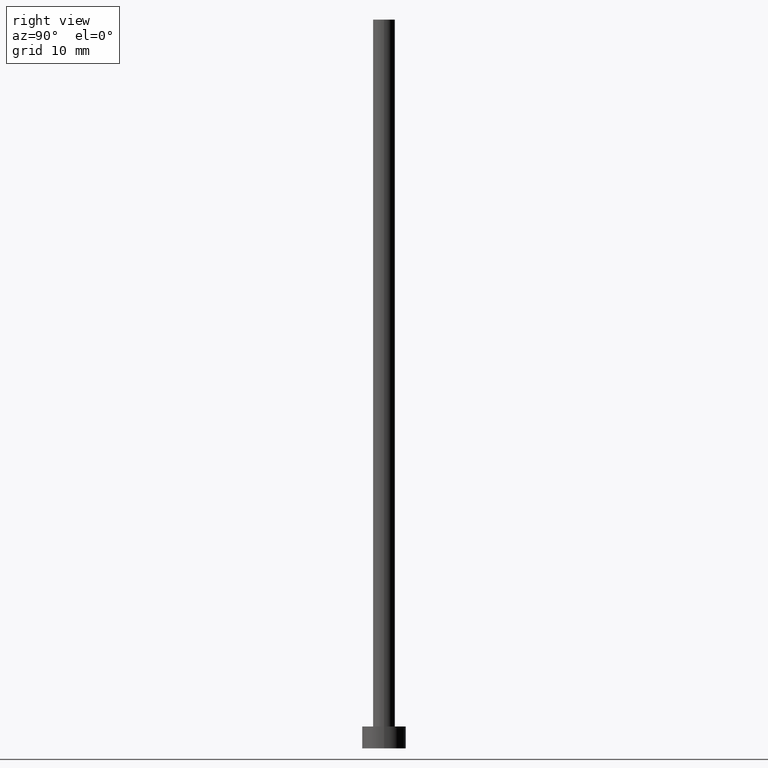
[diagram: clean part render]
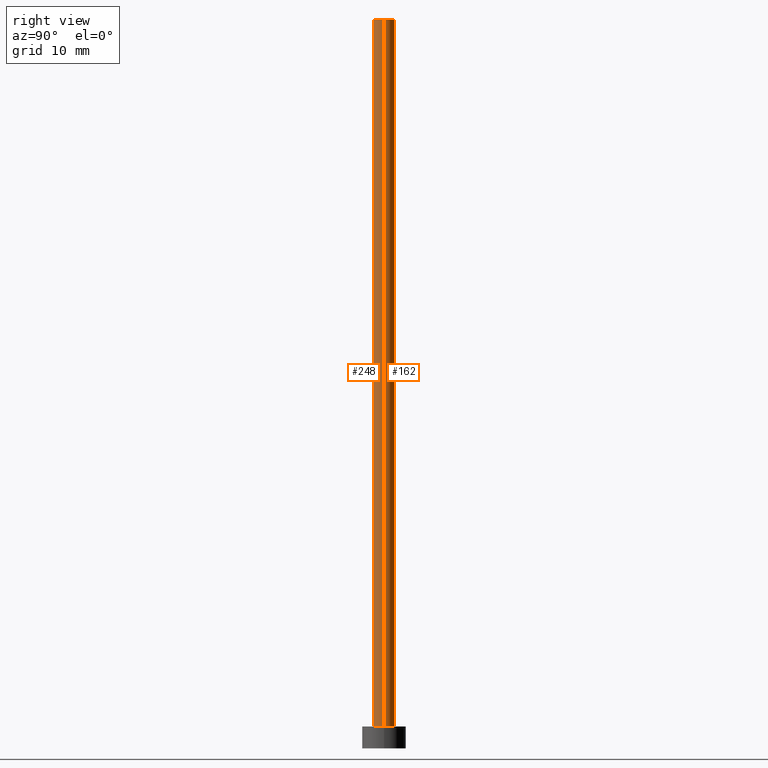
[diagram: same view with one multi-face feature highlighted, each face labeled with its STEP entity id]
A machine part, right view. The highlighted faces form ONE feature: a constant-radius fillet chain: 2 tangent blend faces with common blend radius 1.5 mm. The faces share edges in the B-rep.
Their STEP definitions:
[1] entity #248 (Cylinder):
#8 = EDGE_CURVE ( 'NONE', #135, #22, #161, .T. ) ;
#11 = CARTESIAN_POINT ( 'NONE',  ( -1.500000000000000222, 0.000000000000000000, 100.0000000000000000 ) ) ;
#12 = AXIS2_PLACEMENT_3D ( 'NONE', #60, #32, #37 ) ;
#18 = CYLINDRICAL_SURFACE ( 'NONE', #107, 1.500000000000000222 ) ;
#22 = VERTEX_POINT ( 'NONE', #163 ) ;
#23 = VECTOR ( 'NONE', #139, 1000.000000000000000 ) ;
#32 = DIRECTION ( 'NONE',  ( 0.000000000000000000, 0.000000000000000000, 1.000000000000000000 ) ) ;
#37 = DIRECTION ( 'NONE',  ( 1.000000000000000000, 0.000000000000000000, 0.000000000000000000 ) ) ;
#40 = EDGE_CURVE ( 'NONE', #22, #72, #165, .T. ) ;
#60 = CARTESIAN_POINT ( 'NONE',  ( 0.000000000000000000, 0.000000000000000000, 100.0000000000000000 ) ) ;
#72 = VERTEX_POINT ( 'NONE', #201 ) ;
#73 = DIRECTION ( 'NONE',  ( -1.000000000000000000, 0.000000000000000000, 0.000000000000000000 ) ) ;
#81 = ORIENTED_EDGE ( 'NONE', *, *, #8, .T. ) ;
#82 = EDGE_CURVE ( 'NONE', #99, #72, #173, .T. ) ;
#99 = VERTEX_POINT ( 'NONE', #211 ) ;
#101 = VECTOR ( 'NONE', #253, 1000.000000000000000 ) ;
#107 = AXIS2_PLACEMENT_3D ( 'NONE', #166, #147, #73 ) ;
#119 = FACE_OUTER_BOUND ( 'NONE', #213, .T. ) ;
#135 = VERTEX_POINT ( 'NONE', #11 ) ;
#139 = DIRECTION ( 'NONE',  ( -0.000000000000000000, -0.000000000000000000, -1.000000000000000000 ) ) ;
#141 = AXIS2_PLACEMENT_3D ( 'NONE', #220, #242, #215 ) ;
#147 = DIRECTION ( 'NONE',  ( -0.000000000000000000, -0.000000000000000000, -1.000000000000000000 ) ) ;
#161 = LINE ( 'NONE', #224, #23 ) ;
#163 = CARTESIAN_POINT ( 'NONE',  ( -1.500000000000000222, 0.000000000000000000, 3.000000000000000000 ) ) ;
#165 = CIRCLE ( 'NONE', #141, 1.500000000000000222 ) ;
#166 = CARTESIAN_POINT ( 'NONE',  ( 0.000000000000000000, 0.000000000000000000, 100.0000000000000000 ) ) ;
#173 = LINE ( 'NONE', #226, #101 ) ;
#176 = ORIENTED_EDGE ( 'NONE', *, *, #82, .F. ) ;
#182 = ORIENTED_EDGE ( 'NONE', *, *, #40, .T. ) ;
#201 = CARTESIAN_POINT ( 'NONE',  ( 1.500000000000000222, 1.836970198721029934E-16, 3.000000000000000000 ) ) ;
#206 = EDGE_CURVE ( 'NONE', #135, #99, #231, .T. ) ;
#211 = CARTESIAN_POINT ( 'NONE',  ( 1.500000000000000222, 1.836970198721029934E-16, 100.0000000000000000 ) ) ;
#213 = EDGE_LOOP ( 'NONE', ( #176, #239, #81, #182 ) ) ;
#215 = DIRECTION ( 'NONE',  ( 1.000000000000000000, 0.000000000000000000, 0.000000000000000000 ) ) ;
#220 = CARTESIAN_POINT ( 'NONE',  ( 0.000000000000000000, 0.000000000000000000, 3.000000000000000000 ) ) ;
#224 = CARTESIAN_POINT ( 'NONE',  ( -1.500000000000000222, 0.000000000000000000, 100.0000000000000000 ) ) ;
#226 = CARTESIAN_POINT ( 'NONE',  ( 1.500000000000000222, 1.836970198721029934E-16, 100.0000000000000000 ) ) ;
#231 = CIRCLE ( 'NONE', #12, 1.500000000000000222 ) ;
#239 = ORIENTED_EDGE ( 'NONE', *, *, #206, .F. ) ;
#242 = DIRECTION ( 'NONE',  ( 0.000000000000000000, 0.000000000000000000, 1.000000000000000000 ) ) ;
#248 = ADVANCED_FACE ( 'NONE', ( #119 ), #18, .T. ) ;
#253 = DIRECTION ( 'NONE',  ( -0.000000000000000000, -0.000000000000000000, -1.000000000000000000 ) ) ;
[2] entity #162 (Cylinder):
#8 = EDGE_CURVE ( 'NONE', #135, #22, #161, .T. ) ;
#11 = CARTESIAN_POINT ( 'NONE',  ( -1.500000000000000222, 0.000000000000000000, 100.0000000000000000 ) ) ;
#22 = VERTEX_POINT ( 'NONE', #163 ) ;
#23 = VECTOR ( 'NONE', #139, 1000.000000000000000 ) ;
#35 = CYLINDRICAL_SURFACE ( 'NONE', #63, 1.500000000000000222 ) ;
#38 = DIRECTION ( 'NONE',  ( 1.000000000000000000, 0.000000000000000000, 0.000000000000000000 ) ) ;
#44 = ORIENTED_EDGE ( 'NONE', *, *, #193, .F. ) ;
#45 = ORIENTED_EDGE ( 'NONE', *, *, #240, .T. ) ;
#46 = AXIS2_PLACEMENT_3D ( 'NONE', #78, #137, #84 ) ;
#51 = CARTESIAN_POINT ( 'NONE',  ( 0.000000000000000000, 0.000000000000000000, 100.0000000000000000 ) ) ;
#61 = ORIENTED_EDGE ( 'NONE', *, *, #82, .T. ) ;
#63 = AXIS2_PLACEMENT_3D ( 'NONE', #51, #129, #212 ) ;
#65 = EDGE_LOOP ( 'NONE', ( #44, #61, #45, #180 ) ) ;
#72 = VERTEX_POINT ( 'NONE', #201 ) ;
#78 = CARTESIAN_POINT ( 'NONE',  ( 0.000000000000000000, 0.000000000000000000, 3.000000000000000000 ) ) ;
#82 = EDGE_CURVE ( 'NONE', #99, #72, #173, .T. ) ;
#84 = DIRECTION ( 'NONE',  ( 1.000000000000000000, 0.000000000000000000, 0.000000000000000000 ) ) ;
#93 = CIRCLE ( 'NONE', #238, 1.500000000000000222 ) ;
#99 = VERTEX_POINT ( 'NONE', #211 ) ;
#101 = VECTOR ( 'NONE', #253, 1000.000000000000000 ) ;
#129 = DIRECTION ( 'NONE',  ( -0.000000000000000000, -0.000000000000000000, -1.000000000000000000 ) ) ;
#135 = VERTEX_POINT ( 'NONE', #11 ) ;
#137 = DIRECTION ( 'NONE',  ( 0.000000000000000000, 0.000000000000000000, 1.000000000000000000 ) ) ;
#139 = DIRECTION ( 'NONE',  ( -0.000000000000000000, -0.000000000000000000, -1.000000000000000000 ) ) ;
#156 = CARTESIAN_POINT ( 'NONE',  ( 0.000000000000000000, 0.000000000000000000, 100.0000000000000000 ) ) ;
#157 = CIRCLE ( 'NONE', #46, 1.500000000000000222 ) ;
#161 = LINE ( 'NONE', #224, #23 ) ;
#162 = ADVANCED_FACE ( 'NONE', ( #237 ), #35, .T. ) ;
#163 = CARTESIAN_POINT ( 'NONE',  ( -1.500000000000000222, 0.000000000000000000, 3.000000000000000000 ) ) ;
#173 = LINE ( 'NONE', #226, #101 ) ;
#180 = ORIENTED_EDGE ( 'NONE', *, *, #8, .F. ) ;
#185 = DIRECTION ( 'NONE',  ( 0.000000000000000000, 0.000000000000000000, 1.000000000000000000 ) ) ;
#193 = EDGE_CURVE ( 'NONE', #99, #135, #93, .T. ) ;
#201 = CARTESIAN_POINT ( 'NONE',  ( 1.500000000000000222, 1.836970198721029934E-16, 3.000000000000000000 ) ) ;
#211 = CARTESIAN_POINT ( 'NONE',  ( 1.500000000000000222, 1.836970198721029934E-16, 100.0000000000000000 ) ) ;
#212 = DIRECTION ( 'NONE',  ( -1.000000000000000000, 0.000000000000000000, 0.000000000000000000 ) ) ;
#224 = CARTESIAN_POINT ( 'NONE',  ( -1.500000000000000222, 0.000000000000000000, 100.0000000000000000 ) ) ;
#226 = CARTESIAN_POINT ( 'NONE',  ( 1.500000000000000222, 1.836970198721029934E-16, 100.0000000000000000 ) ) ;
#237 = FACE_OUTER_BOUND ( 'NONE', #65, .T. ) ;
#238 = AXIS2_PLACEMENT_3D ( 'NONE', #156, #185, #38 ) ;
#240 = EDGE_CURVE ( 'NONE', #72, #22, #157, .T. ) ;
#253 = DIRECTION ( 'NONE',  ( -0.000000000000000000, -0.000000000000000000, -1.000000000000000000 ) ) ;